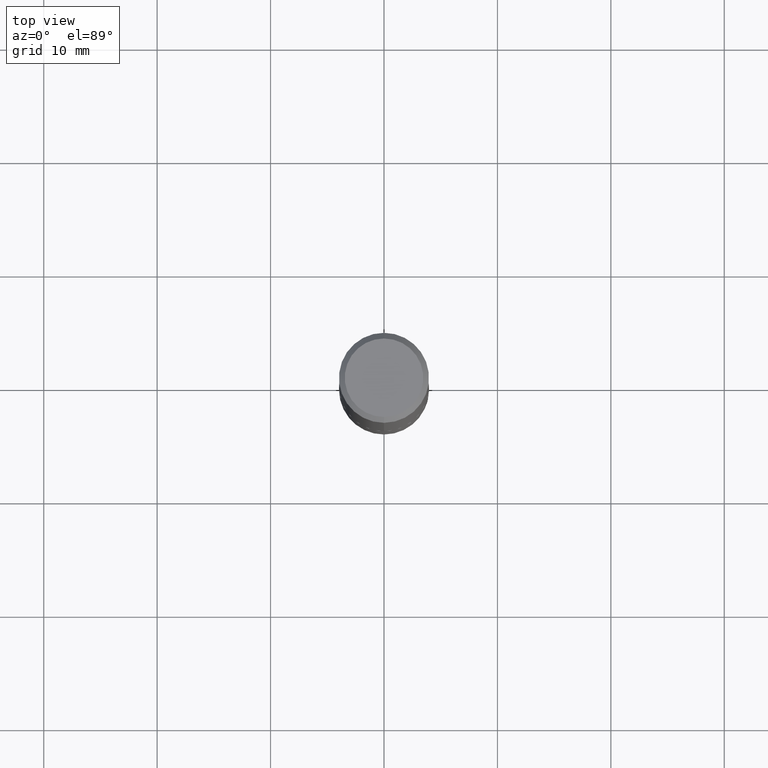
[diagram: clean part render]
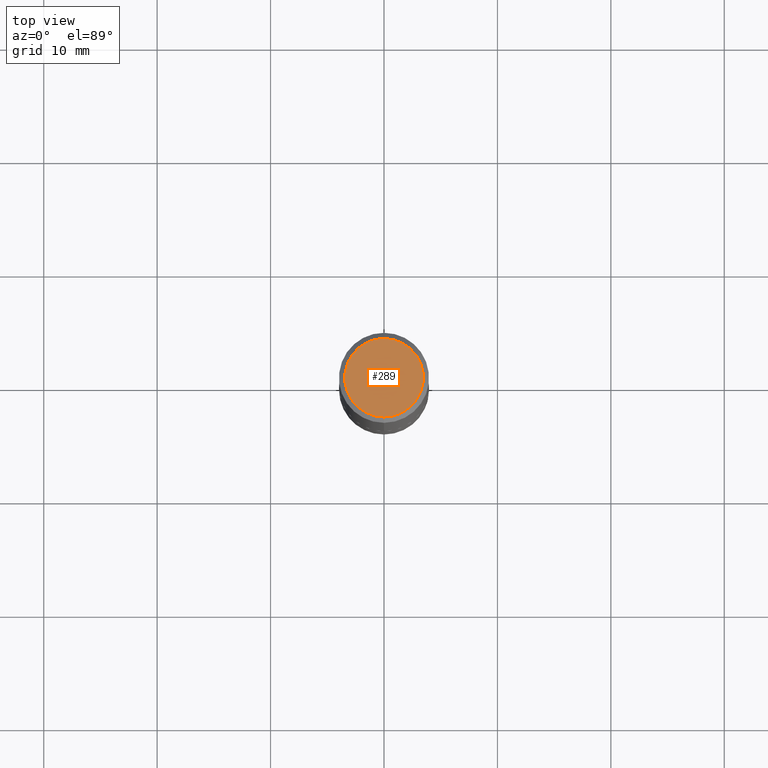
[diagram: same view with one face highlighted and labeled with its STEP entity id]
A machine part, top view. The second image highlights one B-rep face of the part: STEP entity #289.
In plain terms, the highlighted planar face has unit normal (0, -0, -1).
Its self-contained STEP definition (entity closure, byte-faithful):
#13 = EDGE_CURVE ( 'NONE', #241, #402, #167, .T. ) ;
#29 = DIRECTION ( 'NONE',  ( 2.446082020685559481E-29, -3.490603180776537498E-15, -1.000000000000000000 ) ) ;
#33 = CARTESIAN_POINT ( 'NONE',  ( -1.003347832174086081E-15, -0.1362500000000000100, 5.053546217749307002E-16 ) ) ;
#73 = DIRECTION ( 'NONE',  ( 6.982962677686265922E-15, 1.000000000000000000, -3.490603180776537498E-15 ) ) ;
#75 = EDGE_CURVE ( 'NONE', #402, #241, #406, .T. ) ;
#82 = CARTESIAN_POINT ( 'NONE',  ( -7.279525024258520080E-46, 1.038801356182552890E-31, 2.975993839412750979E-17 ) ) ;
#117 = DIRECTION ( 'NONE',  ( -2.446082020685560042E-29, 3.490603180776537498E-15, 1.000000000000000000 ) ) ;
#139 = DIRECTION ( 'NONE',  ( -2.446082020685560042E-29, 3.490603180776537498E-15, 1.000000000000000000 ) ) ;
#140 = EDGE_LOOP ( 'NONE', ( #144, #176 ) ) ;
#144 = ORIENTED_EDGE ( 'NONE', *, *, #75, .T. ) ;
#167 = CIRCLE ( 'NONE', #333, 0.1362500000000000100 ) ;
#176 = ORIENTED_EDGE ( 'NONE', *, *, #13, .T. ) ;
#192 = CARTESIAN_POINT ( 'NONE',  ( 1.021258291611616664E-15, 0.1362500000000000100, -4.458347449866756683E-16 ) ) ;
#225 = CARTESIAN_POINT ( 'NONE',  ( -7.279525024258520080E-46, 1.038801356182552890E-31, 2.975993839412750979E-17 ) ) ;
#230 = AXIS2_PLACEMENT_3D ( 'NONE', #82, #139, #269 ) ;
#241 = VERTEX_POINT ( 'NONE', #33 ) ;
#263 = DIRECTION ( 'NONE',  ( -6.982962677686265922E-15, -1.000000000000000000, 3.490603180776536709E-15 ) ) ;
#269 = DIRECTION ( 'NONE',  ( -6.982962677686265922E-15, -1.000000000000000000, 3.490603180776536709E-15 ) ) ;
#284 = CARTESIAN_POINT ( 'NONE',  ( 9.514286648347537604E-16, 0.1362500000000000100, -4.607147141837394756E-16 ) ) ;
#289 = ADVANCED_FACE ( 'NONE', ( #314 ), #380, .F. ) ;
#314 = FACE_OUTER_BOUND ( 'NONE', #140, .T. ) ;
#318 = AXIS2_PLACEMENT_3D ( 'NONE', #284, #29, #73 ) ;
#333 = AXIS2_PLACEMENT_3D ( 'NONE', #225, #117, #263 ) ;
#380 = PLANE ( 'NONE',  #318 ) ;
#402 = VERTEX_POINT ( 'NONE', #192 ) ;
#406 = CIRCLE ( 'NONE', #230, 0.1362500000000000100 ) ;